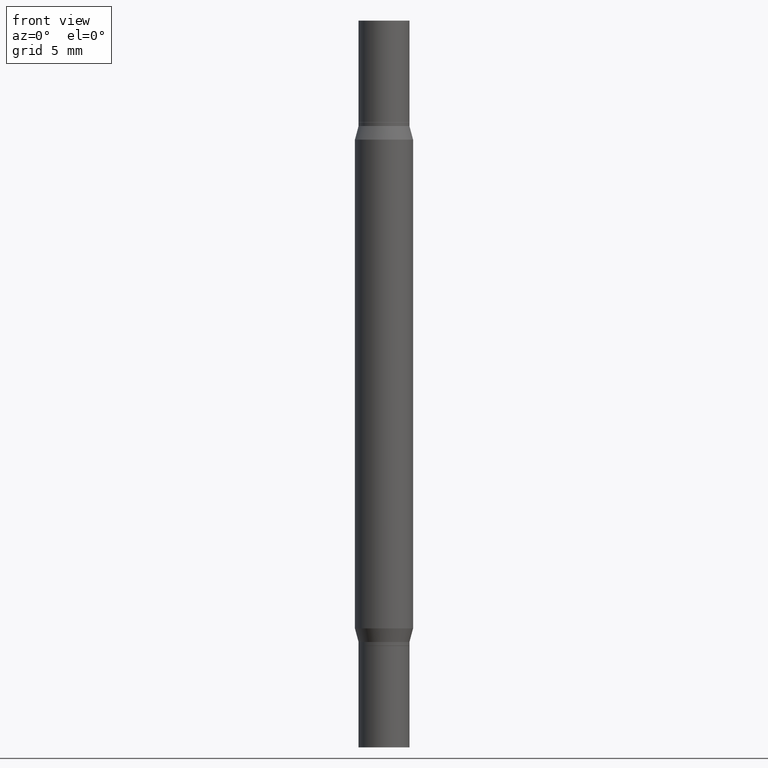
[diagram: clean part render]
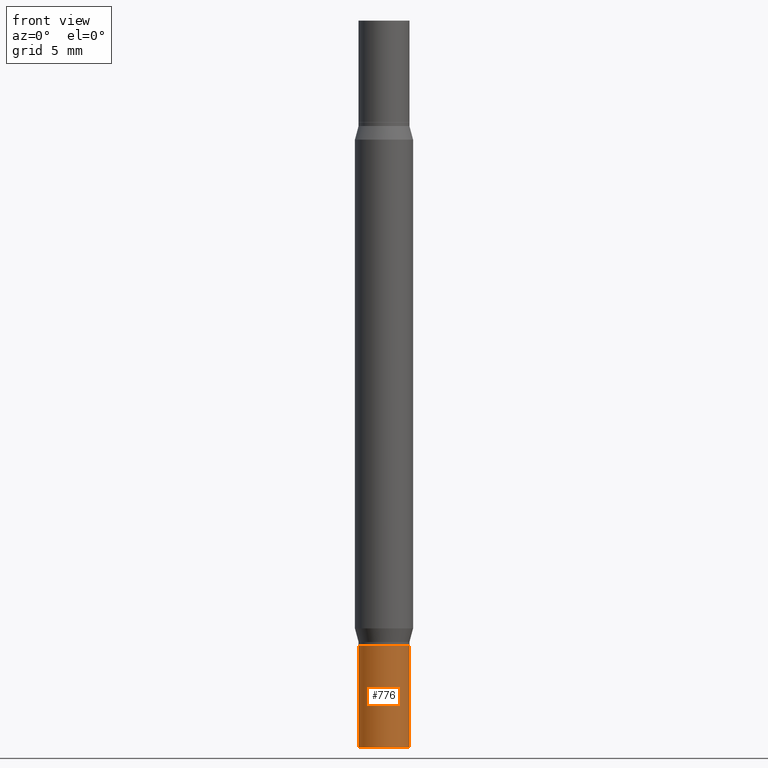
[diagram: same view with one face highlighted and labeled with its STEP entity id]
A machine part, front view. The second image highlights one B-rep face of the part: STEP entity #776.
In plain terms, the highlighted cylindrical surface (edge-blend (fillet) strip) has radius 1.7501 mm, axis along (-0, 0, 1).
Its self-contained STEP definition (entity closure, byte-faithful):
#29 = CARTESIAN_POINT ( 'NONE',  ( 4.139934141990817236E-29, -5.910728758527560286E-15, -1.692899999999999849 ) ) ;
#33 = AXIS2_PLACEMENT_3D ( 'NONE', #140, #979, #68 ) ;
#60 = CARTESIAN_POINT ( 'NONE',  ( 0.06890000000000007230, -7.354107144005315446E-15, -1.968500000000000139 ) ) ;
#68 = DIRECTION ( 'NONE',  ( 1.000000000000000000, -6.982962677686258822E-15, 0.000000000000000000 ) ) ;
#88 = VECTOR ( 'NONE', #219, 39.37007874015748143 ) ;
#140 = CARTESIAN_POINT ( 'NONE',  ( 4.813905344975441835E-29, -6.872981015512731707E-15, -1.968500000000000139 ) ) ;
#166 = AXIS2_PLACEMENT_3D ( 'NONE', #29, #635, #195 ) ;
#175 = DIRECTION ( 'NONE',  ( -2.445468806185136597E-29, 3.491481338843145583E-15, 1.000000000000000000 ) ) ;
#195 = DIRECTION ( 'NONE',  ( 1.000000000000000000, -6.982962677686258822E-15, 0.000000000000000000 ) ) ;
#200 = CARTESIAN_POINT ( 'NONE',  ( 0.06890000000000007230, -6.391854887020144024E-15, -1.692899999999999849 ) ) ;
#205 = CIRCLE ( 'NONE', #166, 0.06890000000000007230 ) ;
#219 = DIRECTION ( 'NONE',  ( -2.445468806185136877E-29, 3.491481338843145188E-15, 1.000000000000000000 ) ) ;
#256 = DIRECTION ( 'NONE',  ( -2.445468806185136877E-29, 3.491481338843145188E-15, 1.000000000000000000 ) ) ;
#322 = ORIENTED_EDGE ( 'NONE', *, *, #335, .F. ) ;
#334 = CARTESIAN_POINT ( 'NONE',  ( -0.06890000000000007230, 4.895639449387095418E-16, -3.389146277185633520E-30 ) ) ;
#335 = EDGE_CURVE ( 'NONE', #560, #834, #782, .T. ) ;
#344 = CARTESIAN_POINT ( 'NONE',  ( -0.06890000000000007230, -5.902290942081436849E-15, -1.692899999999999849 ) ) ;
#382 = EDGE_CURVE ( 'NONE', #560, #965, #450, .T. ) ;
#392 = CARTESIAN_POINT ( 'NONE',  ( 0.000000000000000000, 0.000000000000000000, 0.000000000000000000 ) ) ;
#450 = CIRCLE ( 'NONE', #33, 0.06890000000000007230 ) ;
#480 = ORIENTED_EDGE ( 'NONE', *, *, #382, .T. ) ;
#508 = EDGE_LOOP ( 'NONE', ( #322, #480, #721, #787 ) ) ;
#560 = VERTEX_POINT ( 'NONE', #702 ) ;
#565 = CYLINDRICAL_SURFACE ( 'NONE', #691, 0.06890000000000007230 ) ;
#635 = DIRECTION ( 'NONE',  ( -2.445468806185136597E-29, 3.491481338843145583E-15, 1.000000000000000000 ) ) ;
#691 = AXIS2_PLACEMENT_3D ( 'NONE', #392, #175, #703 ) ;
#702 = CARTESIAN_POINT ( 'NONE',  ( -0.06890000000000007230, -5.902290942081436849E-15, -1.968500000000000139 ) ) ;
#703 = DIRECTION ( 'NONE',  ( 1.000000000000000000, -6.982962677686265922E-15, 4.876176775795935232E-29 ) ) ;
#721 = ORIENTED_EDGE ( 'NONE', *, *, #739, .T. ) ;
#739 = EDGE_CURVE ( 'NONE', #965, #952, #907, .T. ) ;
#776 = ADVANCED_FACE ( 'NONE', ( #936 ), #565, .T. ) ;
#782 = LINE ( 'NONE', #334, #905 ) ;
#787 = ORIENTED_EDGE ( 'NONE', *, *, #835, .F. ) ;
#834 = VERTEX_POINT ( 'NONE', #344 ) ;
#835 = EDGE_CURVE ( 'NONE', #834, #952, #205, .T. ) ;
#905 = VECTOR ( 'NONE', #256, 39.37007874015748143 ) ;
#907 = LINE ( 'NONE', #914, #88 ) ;
#914 = CARTESIAN_POINT ( 'NONE',  ( 0.06890000000000007230, -4.811261284925842315E-16, 3.359685798523402771E-30 ) ) ;
#936 = FACE_OUTER_BOUND ( 'NONE', #508, .T. ) ;
#952 = VERTEX_POINT ( 'NONE', #200 ) ;
#965 = VERTEX_POINT ( 'NONE', #60 ) ;
#979 = DIRECTION ( 'NONE',  ( -2.445468806185136597E-29, 3.491481338843145583E-15, 1.000000000000000000 ) ) ;